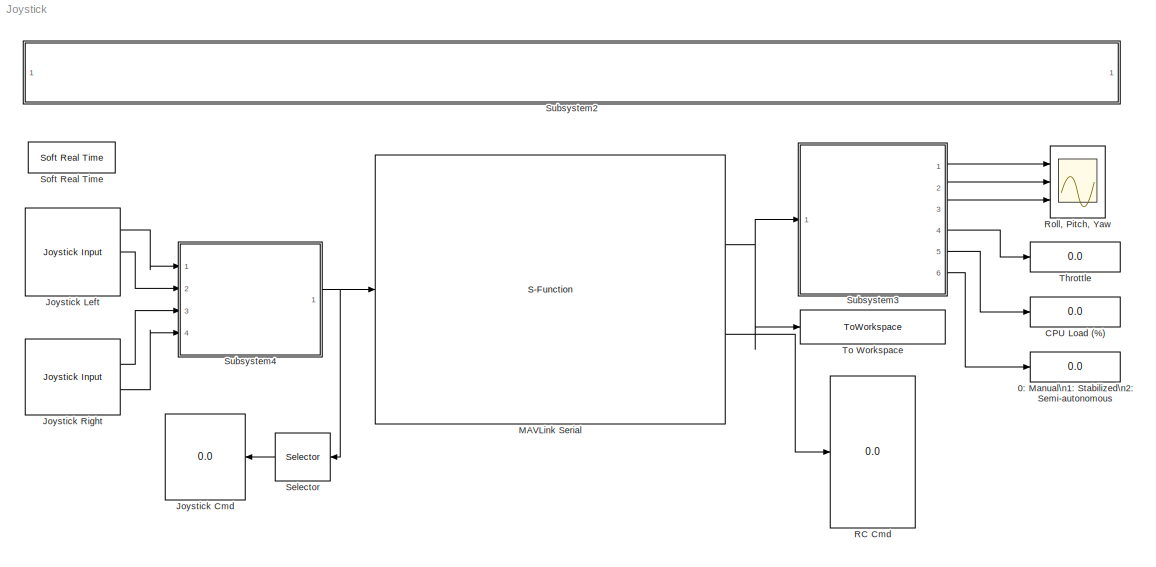
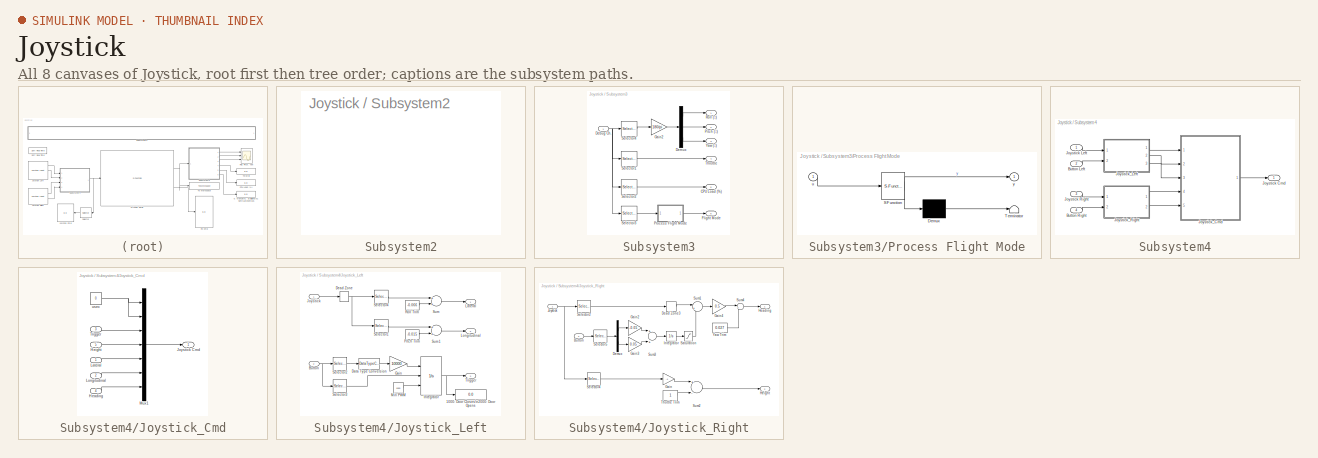
[diagram: thumbnail index - all 8 canvases of the model, root first then tree order]
MODEL Joystick
KIND model
CONFIG InitFcn = sample_time=0.01;
BLOCK [Display] 0: Manual\n1: Stabilized\n2: Semi-autonomous
  Decimation = 1
  Lockdown = off
  Ports = [1]
  SID = 1718
BLOCK [Display] CPU Load (%)
  Decimation = 1
  Lockdown = off
  Ports = [1]
  SID = 1713
BLOCK [Display] Joystick Cmd
  Decimation = 1
  Lockdown = off
  Ports = [1]
  SID = 1600
BLOCK [Reference] Joystick Left  REF=vrlib/Joystick Input
  Ports = [0, 3]
  SID = 1566
  SourceBlock = vrlib/Joystick Input
  SourceType = Joystick Input
  adjustports = on
  forcefeed = off
  joyid = 2
BLOCK [Reference] Joystick Right  REF=vrlib/Joystick Input
  Ports = [0, 2]
  SID = 1616
  SourceBlock = vrlib/Joystick Input
  SourceType = Joystick Input
  adjustports = on
  forcefeed = off
  joyid = 1
BLOCK [S-Function] MAVLink Serial
  EnableBusSupport = off
  FunctionName = MAVLink_Interface
  MaskCallbackString = ||||||||||||||||||
  MaskDisplay = % Block image\nimage(imread('10-inch Quad Heat Map.png'));\n\n%Label block\nfprintf('MAVLink Serial\\n%s\\n%dbps', COM_Port,  Baud_Rate)\n\n\n%Label input ports\n\nin = 1;\nif (SET_MODE == 1)\n    port_label('input', in, 'SET MODE');\n    in = in + 1;\nend\nif (DATA_STREAM == 1)\n    port_label('input', in, 'REQUEST DATA STREAM');\n    in = in + 1;\nend\nif (ATTITUDE_COMMAND == 1)\n    port_label(...<+1431ch>
  MaskEnableString = on,on,on,on,on,on,on,on,on,on,on,on,on,on,on,on,on,on,on
  MaskIconFrame = on
  MaskIconOpaque = off
  MaskIconRotate = none
  MaskIconUnits = autoscale
  MaskInitialization = MSG_ID_NUM_INPUT = [uint8(11) uint8(66) uint8(59) uint8(30) uint8(32) uint8(73) uint8(104) uint8(103) uint8(50)];\nMSG_ID_NAME_INPUT = [SET_MODE DATA_STREAM ATTITUDE_COMMAND ATTITUDE_IN GPS_RAW_IN VFR_HUD_IN VICON_XYZ_RPY VICON_VEL POSITION_DESIRED];\n\nMSG_ID_NUM_OUTPUT = [uint8(0) uint8(30) uint8(27) uint8(73) uint8(74) uint8(34) uint8(37) uint8(104)];\nMSG_ID_NAME_OUTPUT = [HEART_BEAT ATTITUDE_...<+248ch>
  MaskPortRotate = default
  MaskPromptString = COM Port|Baud Rate|HEART BEAT|ATTITUDE|RAW IMU|GLOBAL POSITION |VFR HUD|RC CHANNELS SCALED|SERVO OUTPUT RAW|VICON Output|SET MODE|REQUEST DATA STREAM|ATTITUDE COMMAND|ATTITUDE (HIL)|GPS RAW (HIL)|AIRSPEED (HIL)|VICON POSITION|VICON SPEED|Position Desired
  MaskStyleString = edit,edit,checkbox,checkbox,checkbox,checkbox,checkbox,checkbox,checkbox,checkbox,checkbox,checkbox,checkbox,checkbox,checkbox,checkbox,checkbox,checkbox,checkbox
  MaskTabNameString = Setting,Setting,Output Message,Output Message,Output Message,Output Message,Output Message,Output Message,Output Message,Output Message,Input Message,Input Message,Input Message,Input Message,Input Message,Input Message,Input Message,Input Message,Input Message
  MaskToolTipString = on,on,on,on,on,on,on,on,on,on,on,on,on,on,on,on,on,on,on
  MaskTunableValueString = on,on,on,on,on,on,on,on,on,on,on,on,on,on,on,on,on,on,on
  MaskValueString = 'COM8'|57600|off|on|off|off|off|on|off|off|off|off|off|off|off|off|on|off|off
  MaskVariables = COM_Port=@1;Baud_Rate=@2;HEART_BEAT=@3;ATTITUDE_OUT=@4;RAW_IMU=@5;POSITION_OUT=@6;VFR_HUD=@7;RC_SCALED=@8;SERVO_OUT_RAW=@9;VICON_XYZ_RPY_Output=@10;SET_MODE=@11;DATA_STREAM=@12;ATTITUDE_COMMAND=@13;ATTITUDE_IN=@14;GPS_RAW_IN=@15;VFR_HUD_IN=@16;VICON_XYZ_RPY=@17;VICON_VEL=@18;POSITION_DESIRED=@19;
  MaskVisibilityString = on,on,on,on,on,on,on,on,on,on,on,on,on,on,on,on,on,on,on
  Parameters = COM_Port,Baud_Rate,MSG_INPUT,MSG_OUTPUT
  Ports = [1, 2]
  SID = 195
BLOCK [Display] RC Cmd
  Decimation = 1
  Lockdown = off
  Ports = [1]
  SID = 1665
BLOCK [Scope] Roll, Pitch, Yaw
  DataFormat = StructureWithTime
  Floating = off
  LimitDataPoints = off
  NumInputPorts = 3
  Ports = [3]
  SID = 1675
  SampleInput = on
  SampleTime = 0
  SaveName = ScopeData1
  TickLabels = on
  TimeRange = 24
  YMax = 90~90~40
  YMin = -20~-10~-40
  ZoomMode = xonly
BLOCK [Selector] Selector
  IndexOptions = Index vector (dialog)
  Indices = [4:7]
  InputPortWidth = 7
  OutputSizes = 1
  Ports = [1, 1]
  SID = 1739
BLOCK [Reference] Soft Real Time  REF=utility/Soft Real Time  (lib defined in slx_8818c3a16fdf)
  Ports = []
  SID = 49
  SourceBlock = utility/Soft Real Time
  x = 0.8
BLOCK [SubSystem] Subsystem2
  FunctionWithSeparateData = off
  MaskDisplay = %Label block\nfprintf('NANYANG TECHNOLOGICAL UNIVERSITY')
  MaskHideContents = off
  MaskIconFrame = on
  MaskIconOpaque = on
  MaskIconRotate = none
  MaskIconUnits = autoscale
  MaskPortRotate = default
  MinAlgLoopOccurrences = off
  Opaque = off
  Ports = []
  PropExecContextOutsideSubsystem = off
  RTWSystemCode = Auto
  RequestExecContextInheritance = off
  SID = 1688
BLOCK [SubSystem] Subsystem3
  FunctionWithSeparateData = off
  MaskHideContents = off
  MinAlgLoopOccurrences = off
  Opaque = off
  Ports = [1, 6]
  PropExecContextOutsideSubsystem = off
  RTWSystemCode = Auto
  RequestExecContextInheritance = off
  SID = 1692
BLOCK [Outport] Subsystem3/CPU Load (%)
  IconDisplay = Port number
  Port = 5
  SID = 1710
BLOCK [Inport] Subsystem3/Debug Ch.
  IconDisplay = Port number
  SID = 1695
BLOCK [Demux] Subsystem3/Demux
  DisplayOption = bar
  Outputs = 3
  Ports = [1, 3]
  SID = 1691
BLOCK [Outport] Subsystem3/Flight Mode
  IconDisplay = Port number
  Port = 6
  SID = 1712
BLOCK [Gain] Subsystem3/Gain2
  Gain = 180/pi
  OutDataTypeStr = Inherit: Inherit via internal rule
  ParamDataTypeStr = Inherit: Inherit via internal rule
  SID = 1684
  SaturateOnIntegerOverflow = off
BLOCK [Outport] Subsystem3/Pitch (º)
  IconDisplay = Port number
  Port = 2
  SID = 1694
BLOCK [SubSystem] Subsystem3/Process Flight Mode
  ErrorFcn = Stateflow.Translate.translate
  FunctionWithSeparateData = off
  MaskDescription = Embedded MATLAB block
  MaskDisplay = bgColor = Simulink.Root.ColorString2Rgb(get_param(gcbh, 'BackgroundColor')); image(imread('private/eml_membrane_16.png','png','BackgroundColor',bgColor(1:3)),'center'); disp([10 10 'fcn']);
  MaskHideContents = off
  MaskIconFrame = on
  MaskIconOpaque = off
  MaskIconRotate = none
  MaskIconUnits = normalized
  MaskPortRotate = default
  MaskSelfModifiable = on
  MaskType = Stateflow
  MinAlgLoopOccurrences = off
  Opaque = off
  PermitHierarchicalResolution = ExplicitOnly
  Ports = [1, 1]
  PropExecContextOutsideSubsystem = off
  RTWSystemCode = Auto
  RequestExecContextInheritance = off
  SID = 1721
  TreatAsAtomicUnit = on
BLOCK [Demux] Subsystem3/Process Flight Mode/ Demux 
  Outputs = 1
  Ports = [1, 1]
  SID = 1721::15
BLOCK [S-Function] Subsystem3/Process Flight Mode/ SFunction 
  EnableBusSupport = on
  FunctionName = sf_sfun
  PortCounts = [1 2]
  Ports = [1, 2]
  SID = 1721::14
  Tag = Stateflow S-Function Joystick 2
BLOCK [Terminator] Subsystem3/Process Flight Mode/ Terminator 
  SID = 1721::17
BLOCK [Inport] Subsystem3/Process Flight Mode/u
  IconDisplay = Port number
  SID = 1721::1
BLOCK [Outport] Subsystem3/Process Flight Mode/y
  IconDisplay = Port number
  SID = 1721::5
BLOCK [Outport] Subsystem3/Roll (º)
  IconDisplay = Port number
  SID = 1693
BLOCK [Selector] Subsystem3/Selector1
  IndexOptions = Index vector (dialog)
  Indices = 4
  InputPortWidth = 6
  OutputSizes = 1
  Ports = [1, 1]
  SID = 1708
BLOCK [Selector] Subsystem3/Selector2
  IndexOptions = Index vector (dialog)
  Indices = 5
  InputPortWidth = 6
  OutputSizes = 1
  Ports = [1, 1]
  SID = 1709
BLOCK [Selector] Subsystem3/Selector3
  IndexOptions = Index vector (dialog)
  Indices = 6
  InputPortWidth = 6
  OutputSizes = 1
  Ports = [1, 1]
  SID = 1711
BLOCK [Selector] Subsystem3/Selector4
  IndexOptions = Index vector (dialog)
  Indices = [1 2 3]
  InputPortWidth = 6
  OutputSizes = 1
  Ports = [1, 1]
  SID = 1683
BLOCK [Outport] Subsystem3/Throttle
  IconDisplay = Port number
  Port = 4
  SID = 1707
BLOCK [Outport] Subsystem3/Yaw (º)
  IconDisplay = Port number
  Port = 3
  SID = 1696
BLOCK [SubSystem] Subsystem4
  FunctionWithSeparateData = off
  MaskHideContents = off
  MinAlgLoopOccurrences = off
  Opaque = off
  Ports = [4, 1]
  PropExecContextOutsideSubsystem = off
  RTWSystemCode = Auto
  RequestExecContextInheritance = off
  SID = 1740
BLOCK [Inport] Subsystem4/Button Left
  IconDisplay = Port number
  Port = 2
  SID = 1779
BLOCK [Inport] Subsystem4/Button Right
  IconDisplay = Port number
  Port = 4
  SID = 1745
BLOCK [Outport] Subsystem4/Joystick Cmd
  IconDisplay = Port number
  SID = 1742
BLOCK [Inport] Subsystem4/Joystick Left
  IconDisplay = Port number
  SID = 1741
BLOCK [Inport] Subsystem4/Joystick Right
  IconDisplay = Port number
  Port = 3
  SID = 1743
BLOCK [SubSystem] Subsystem4/Joystick_Cmd
  FunctionWithSeparateData = off
  MaskHideContents = off
  MinAlgLoopOccurrences = off
  Opaque = off
  Ports = [5, 1]
  PropExecContextOutsideSubsystem = off
  RTWSystemCode = Auto
  RequestExecContextInheritance = off
  SID = 543
BLOCK [Inport] Subsystem4/Joystick_Cmd/Heading
  IconDisplay = Port number
  Port = 4
  SID = 1651
BLOCK [Inport] Subsystem4/Joystick_Cmd/Height
  IconDisplay = Port number
  Port = 5
  SID = 1652
BLOCK [Outport] Subsystem4/Joystick_Cmd/Joystick Cmd
  IconDisplay = Port number
  SID = 545
BLOCK [Inport] Subsystem4/Joystick_Cmd/Lateral
  IconDisplay = Port number
  SID = 544
BLOCK [Inport] Subsystem4/Joystick_Cmd/Longitudinal
  IconDisplay = Port number
  Port = 2
  SID = 546
BLOCK [Mux] Subsystem4/Joystick_Cmd/Mux1
  DisplayOption = bar
  Inputs = 7
  Ports = [7, 1]
  SID = 495
BLOCK [Inport] Subsystem4/Joystick_Cmd/Trigger
  IconDisplay = Port number
  Port = 3
  SID = 1792
BLOCK [Constant] Subsystem4/Joystick_Cmd/usec
  SID = 496
  SampleTime = sample_time
  Value = 0
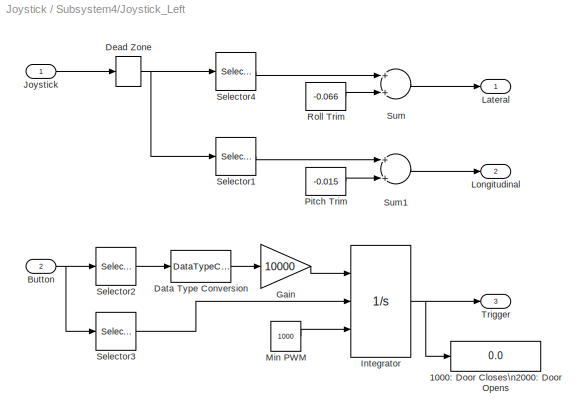
BLOCK [SubSystem] Subsystem4/Joystick_Left
  FunctionWithSeparateData = off
  MaskHideContents = off
  MinAlgLoopOccurrences = off
  Opaque = off
  Ports = [2, 3]
  PropExecContextOutsideSubsystem = off
  RTWSystemCode = Auto
  RequestExecContextInheritance = off
  SID = 1595
BLOCK [Display] Subsystem4/Joystick_Left/1000: Door Closes\n2000: Door Opens
  Decimation = 1
  Lockdown = off
  Ports = [1]
  SID = 1781
BLOCK [Inport] Subsystem4/Joystick_Left/Button
  IconDisplay = Port number
  Port = 2
  SID = 1780
BLOCK [DataTypeConversion] Subsystem4/Joystick_Left/Data Type Conversion
  OutDataTypeStr = double
  RndMeth = Floor
  SID = 1790
  SaturateOnIntegerOverflow = off
BLOCK [DeadZone] Subsystem4/Joystick_Left/Dead Zone
  LowerValue = -0.1
  SID = 1571
  UpperValue = 0.1
BLOCK [Gain] Subsystem4/Joystick_Left/Gain
  Gain = 10000
  OutDataTypeStr = Inherit: Inherit via internal rule
  ParamDataTypeStr = Inherit: Inherit via internal rule
  SID = 1787
  SaturateOnIntegerOverflow = off
BLOCK [Integrator] Subsystem4/Joystick_Left/Integrator
  ExternalReset = either
  InitialConditionSource = external
  LimitOutput = on
  LowerSaturationLimit = 1000
  Ports = [3, 1]
  SID = 1789
  UpperSaturationLimit = 1800
BLOCK [Inport] Subsystem4/Joystick_Left/Joystick
  IconDisplay = Port number
  SID = 1597
BLOCK [Outport] Subsystem4/Joystick_Left/Lateral
  IconDisplay = Port number
  SID = 1598
BLOCK [Outport] Subsystem4/Joystick_Left/Longitudinal
  IconDisplay = Port number
  Port = 2
  SID = 1646
BLOCK [Constant] Subsystem4/Joystick_Left/Min PWM
  SID = 1783
  Value = 1000
BLOCK [Constant] Subsystem4/Joystick_Left/Pitch Trim
  SID = 1659
  Value = -0.015
BLOCK [Constant] Subsystem4/Joystick_Left/Roll Trim
  SID = 1658
  Value = -0.066
BLOCK [Selector] Subsystem4/Joystick_Left/Selector1
  IndexOptions = Index vector (dialog)
  Indices = 2
  InputPortWidth = 4
  OutputSizes = 1
  Ports = [1, 1]
  SID = 1681
BLOCK [Selector] Subsystem4/Joystick_Left/Selector2
  IndexOptions = Index vector (dialog)
  Indices = 1
  InputPortWidth = 12
  OutputSizes = 1
  Ports = [1, 1]
  SID = 1782
BLOCK [Selector] Subsystem4/Joystick_Left/Selector3
  IndexOptions = Index vector (dialog)
  Indices = 4
  InputPortWidth = 12
  OutputSizes = 1
  Ports = [1, 1]
  SID = 1794
BLOCK [Selector] Subsystem4/Joystick_Left/Selector4
  IndexOptions = Index vector (dialog)
  Indices = 1
  InputPortWidth = 4
  OutputSizes = 1
  Ports = [1, 1]
  SID = 1680
BLOCK [Sum] Subsystem4/Joystick_Left/Sum
  InputSameDT = off
  OutDataTypeStr = Inherit: Inherit via internal rule
  Ports = [2, 1]
  SID = 1657
  SaturateOnIntegerOverflow = off
BLOCK [Sum] Subsystem4/Joystick_Left/Sum1
  InputSameDT = off
  OutDataTypeStr = Inherit: Inherit via internal rule
  Ports = [2, 1]
  SID = 1660
  SaturateOnIntegerOverflow = off
BLOCK [Outport] Subsystem4/Joystick_Left/Trigger
  IconDisplay = Port number
  Port = 3
  SID = 1791
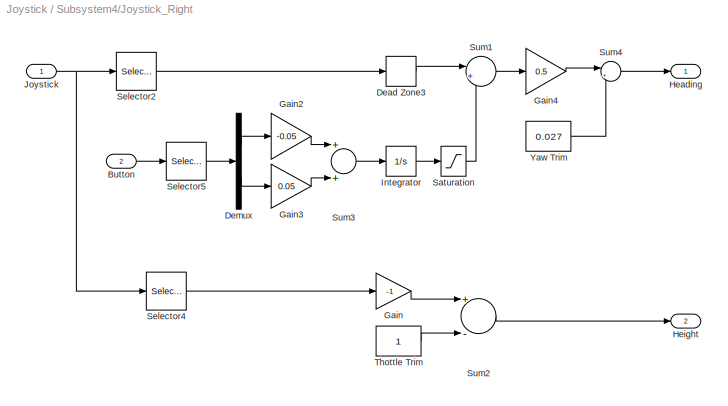
BLOCK [SubSystem] Subsystem4/Joystick_Right
  FunctionWithSeparateData = off
  MaskHideContents = off
  MinAlgLoopOccurrences = off
  Opaque = off
  Ports = [2, 2]
  PropExecContextOutsideSubsystem = off
  RTWSystemCode = Auto
  RequestExecContextInheritance = off
  SID = 1634
BLOCK [Inport] Subsystem4/Joystick_Right/Button
  IconDisplay = Port number
  Port = 2
  SID = 1744
BLOCK [DeadZone] Subsystem4/Joystick_Right/Dead Zone3
  LowerValue = -0.2
  SID = 1729
  UpperValue = 0.2
BLOCK [Demux] Subsystem4/Joystick_Right/Demux
  DisplayOption = bar
  Outputs = 2
  Ports = [1, 2]
  SID = 1765
BLOCK [Gain] Subsystem4/Joystick_Right/Gain
  Gain = -1
  OutDataTypeStr = Inherit: Inherit via internal rule
  ParamDataTypeStr = Inherit: Inherit via internal rule
  SID = 1626
  SaturateOnIntegerOverflow = off
BLOCK [Gain] Subsystem4/Joystick_Right/Gain2
  Gain = -0.05
  OutDataTypeStr = Inherit: Inherit via internal rule
  ParamDataTypeStr = Inherit: Inherit via internal rule
  SID = 1767
  SaturateOnIntegerOverflow = off
BLOCK [Gain] Subsystem4/Joystick_Right/Gain3
  Gain = 0.05
  OutDataTypeStr = Inherit: Inherit via internal rule
  ParamDataTypeStr = Inherit: Inherit via internal rule
  SID = 1768
  SaturateOnIntegerOverflow = off
BLOCK [Gain] Subsystem4/Joystick_Right/Gain4
  Gain = 0.5
  OutDataTypeStr = Inherit: Inherit via internal rule
  ParamDataTypeStr = Inherit: Inherit via internal rule
  SID = 1777
  SaturateOnIntegerOverflow = off
BLOCK [Outport] Subsystem4/Joystick_Right/Heading
  IconDisplay = Port number
  SID = 1637
BLOCK [Outport] Subsystem4/Joystick_Right/Height
  IconDisplay = Port number
  Port = 2
  SID = 1635
BLOCK [Integrator] Subsystem4/Joystick_Right/Integrator
  Ports = [1, 1]
  SID = 1771
BLOCK [Inport] Subsystem4/Joystick_Right/Joystick
  IconDisplay = Port number
  SID = 1636
BLOCK [Saturate] Subsystem4/Joystick_Right/Saturation
  InputPortMap = u0
  LowerLimit = -0.1
  Ports = [1, 1]
  SID = 1772
  UpperLimit = 0.1
BLOCK [Selector] Subsystem4/Joystick_Right/Selector2
  IndexOptions = Index vector (dialog)
  Indices = [1]
  InputPortWidth = 3
  OutputSizes = 1
  Ports = [1, 1]
  SID = 1632
BLOCK [Selector] Subsystem4/Joystick_Right/Selector4
  IndexOptions = Index vector (dialog)
  Indices = 2
  InputPortWidth = 3
  OutputSizes = 1
  Ports = [1, 1]
  SID = 1640
BLOCK [Selector] Subsystem4/Joystick_Right/Selector5
  IndexOptions = Index vector (dialog)
  Indices = [4 5]
  InputPortWidth = 11
  OutputSizes = 1
  Ports = [1, 1]
  SID = 1756
BLOCK [Sum] Subsystem4/Joystick_Right/Sum1
  IconShape = round
  InputSameDT = off
  Inputs = |++
  OutDataTypeStr = Inherit: Inherit via internal rule
  Ports = [2, 1]
  SID = 1662
  SaturateOnIntegerOverflow = off
BLOCK [Sum] Subsystem4/Joystick_Right/Sum2
  InputSameDT = off
  Inputs = +-
  OutDataTypeStr = Inherit: Inherit via internal rule
  Ports = [2, 1]
  SID = 1737
  SaturateOnIntegerOverflow = off
BLOCK [Sum] Subsystem4/Joystick_Right/Sum3
  InputSameDT = off
  OutDataTypeStr = double
  Ports = [2, 1]
  SID = 1769
  SaturateOnIntegerOverflow = off
BLOCK [Sum] Subsystem4/Joystick_Right/Sum4
  IconShape = round
  InputSameDT = off
  Inputs = |++
  OutDataTypeStr = Inherit: Inherit via internal rule
  Ports = [2, 1]
  SID = 1773
  SaturateOnIntegerOverflow = off
BLOCK [Constant] Subsystem4/Joystick_Right/Thottle Trim
  SID = 1738
BLOCK [Constant] Subsystem4/Joystick_Right/Yaw Trim
  SID = 1661
  Value = 0.027
BLOCK [Display] Throttle
  Decimation = 1
  Lockdown = off
  Ports = [1]
  SID = 1706
BLOCK [ToWorkspace] To Workspace
  MaxDataPoints = inf
  Ports = [1]
  SID = 1668
  SampleTime = -1
  SaveFormat = Structure With Time
  VariableName = Data_Logging
LINE Joystick Left:1 -> Subsystem4:1
LINE Joystick Left:2 -> Subsystem4:2
LINE Joystick Right:1 -> Subsystem4:3
LINE Joystick Right:2 -> Subsystem4:4
NET MAVLink Serial:1 -> Subsystem3:1, To Workspace:1
LINE MAVLink Serial:2 -> RC Cmd:1
LINE Selector:1 -> Joystick Cmd:1
NET Subsystem3/Debug Ch.:1 -> Subsystem3/Selector1:1, Subsystem3/Selector2:1, Subsystem3/Selector3:1, Subsystem3/Selector4:1
LINE Subsystem3/Demux:1 -> Subsystem3/Roll (º):1
LINE Subsystem3/Demux:2 -> Subsystem3/Pitch (º):1
LINE Subsystem3/Demux:3 -> Subsystem3/Yaw (º):1
LINE Subsystem3/Gain2:1 -> Subsystem3/Demux:1
LINE Subsystem3/Process Flight Mode/ Demux :1 -> Subsystem3/Process Flight Mode/ Terminator :1
LINE Subsystem3/Process Flight Mode/ SFunction :1 -> Subsystem3/Process Flight Mode/ Demux :1
LINE Subsystem3/Process Flight Mode/ SFunction :2 -> Subsystem3/Process Flight Mode/y:1
LINE Subsystem3/Process Flight Mode/u:1 -> Subsystem3/Process Flight Mode/ SFunction :1
LINE Subsystem3/Process Flight Mode:1 -> Subsystem3/Flight Mode:1
LINE Subsystem3/Selector1:1 -> Subsystem3/Throttle:1
LINE Subsystem3/Selector2:1 -> Subsystem3/CPU Load (%):1
LINE Subsystem3/Selector3:1 -> Subsystem3/Process Flight Mode:1
LINE Subsystem3/Selector4:1 -> Subsystem3/Gain2:1
LINE Subsystem3:1 -> Roll, Pitch, Yaw:1
LINE Subsystem3:2 -> Roll, Pitch, Yaw:2
LINE Subsystem3:3 -> Roll, Pitch, Yaw:3
LINE Subsystem3:4 -> Throttle:1
LINE Subsystem3:5 -> CPU Load (%):1
LINE Subsystem3:6 -> 0: Manual\n1: Stabilized\n2: Semi-autonomous:1
LINE Subsystem4/Button Left:1 -> Subsystem4/Joystick_Left:2
LINE Subsystem4/Button Right:1 -> Subsystem4/Joystick_Right:2
LINE Subsystem4/Joystick Left:1 -> Subsystem4/Joystick_Left:1
LINE Subsystem4/Joystick Right:1 -> Subsystem4/Joystick_Right:1
LINE Subsystem4/Joystick_Cmd/Heading:1 -> Subsystem4/Joystick_Cmd/Mux1:7
LINE Subsystem4/Joystick_Cmd/Height:1 -> Subsystem4/Joystick_Cmd/Mux1:4
LINE Subsystem4/Joystick_Cmd/Lateral:1 -> Subsystem4/Joystick_Cmd/Mux1:5
LINE Subsystem4/Joystick_Cmd/Longitudinal:1 -> Subsystem4/Joystick_Cmd/Mux1:6
LINE Subsystem4/Joystick_Cmd/Mux1:1 -> Subsystem4/Joystick_Cmd/Joystick Cmd:1
LINE Subsystem4/Joystick_Cmd/Trigger:1 -> Subsystem4/Joystick_Cmd/Mux1:3
NET Subsystem4/Joystick_Cmd/usec:1 -> Subsystem4/Joystick_Cmd/Mux1:1, Subsystem4/Joystick_Cmd/Mux1:2
LINE Subsystem4/Joystick_Cmd:1 -> Subsystem4/Joystick Cmd:1
NET Subsystem4/Joystick_Left/Button:1 -> Subsystem4/Joystick_Left/Selector2:1, Subsystem4/Joystick_Left/Selector3:1
LINE Subsystem4/Joystick_Left/Data Type Conversion:1 -> Subsystem4/Joystick_Left/Gain:1
NET Subsystem4/Joystick_Left/Dead Zone:1 -> Subsystem4/Joystick_Left/Selector1:1, Subsystem4/Joystick_Left/Selector4:1
LINE Subsystem4/Joystick_Left/Gain:1 -> Subsystem4/Joystick_Left/Integrator:1
NET Subsystem4/Joystick_Left/Integrator:1 -> Subsystem4/Joystick_Left/1000: Door Closes\n2000: Door Opens:1, Subsystem4/Joystick_Left/Trigger:1
LINE Subsystem4/Joystick_Left/Joystick:1 -> Subsystem4/Joystick_Left/Dead Zone:1
LINE Subsystem4/Joystick_Left/Min PWM:1 -> Subsystem4/Joystick_Left/Integrator:3
LINE Subsystem4/Joystick_Left/Pitch Trim:1 -> Subsystem4/Joystick_Left/Sum1:2
LINE Subsystem4/Joystick_Left/Roll Trim:1 -> Subsystem4/Joystick_Left/Sum:2
LINE Subsystem4/Joystick_Left/Selector1:1 -> Subsystem4/Joystick_Left/Sum1:1
LINE Subsystem4/Joystick_Left/Selector2:1 -> Subsystem4/Joystick_Left/Data Type Conversion:1
LINE Subsystem4/Joystick_Left/Selector3:1 -> Subsystem4/Joystick_Left/Integrator:2
LINE Subsystem4/Joystick_Left/Selector4:1 -> Subsystem4/Joystick_Left/Sum:1
LINE Subsystem4/Joystick_Left/Sum1:1 -> Subsystem4/Joystick_Left/Longitudinal:1
LINE Subsystem4/Joystick_Left/Sum:1 -> Subsystem4/Joystick_Left/Lateral:1
LINE Subsystem4/Joystick_Left:1 -> Subsystem4/Joystick_Cmd:1
LINE Subsystem4/Joystick_Left:2 -> Subsystem4/Joystick_Cmd:2
LINE Subsystem4/Joystick_Left:3 -> Subsystem4/Joystick_Cmd:3
LINE Subsystem4/Joystick_Right/Button:1 -> Subsystem4/Joystick_Right/Selector5:1
LINE Subsystem4/Joystick_Right/Dead Zone3:1 -> Subsystem4/Joystick_Right/Sum1:1
LINE Subsystem4/Joystick_Right/Demux:1 -> Subsystem4/Joystick_Right/Gain2:1
LINE Subsystem4/Joystick_Right/Demux:2 -> Subsystem4/Joystick_Right/Gain3:1
LINE Subsystem4/Joystick_Right/Gain2:1 -> Subsystem4/Joystick_Right/Sum3:1
LINE Subsystem4/Joystick_Right/Gain3:1 -> Subsystem4/Joystick_Right/Sum3:2
LINE Subsystem4/Joystick_Right/Gain4:1 -> Subsystem4/Joystick_Right/Sum4:1
LINE Subsystem4/Joystick_Right/Gain:1 -> Subsystem4/Joystick_Right/Sum2:1
LINE Subsystem4/Joystick_Right/Integrator:1 -> Subsystem4/Joystick_Right/Saturation:1
NET Subsystem4/Joystick_Right/Joystick:1 -> Subsystem4/Joystick_Right/Selector2:1, Subsystem4/Joystick_Right/Selector4:1
LINE Subsystem4/Joystick_Right/Saturation:1 -> Subsystem4/Joystick_Right/Sum1:2
LINE Subsystem4/Joystick_Right/Selector2:1 -> Subsystem4/Joystick_Right/Dead Zone3:1
LINE Subsystem4/Joystick_Right/Selector4:1 -> Subsystem4/Joystick_Right/Gain:1
LINE Subsystem4/Joystick_Right/Selector5:1 -> Subsystem4/Joystick_Right/Demux:1
LINE Subsystem4/Joystick_Right/Sum1:1 -> Subsystem4/Joystick_Right/Gain4:1
LINE Subsystem4/Joystick_Right/Sum2:1 -> Subsystem4/Joystick_Right/Height:1
LINE Subsystem4/Joystick_Right/Sum3:1 -> Subsystem4/Joystick_Right/Integrator:1
LINE Subsystem4/Joystick_Right/Sum4:1 -> Subsystem4/Joystick_Right/Heading:1
LINE Subsystem4/Joystick_Right/Thottle Trim:1 -> Subsystem4/Joystick_Right/Sum2:2
LINE Subsystem4/Joystick_Right/Yaw Trim:1 -> Subsystem4/Joystick_Right/Sum4:2
LINE Subsystem4/Joystick_Right:1 -> Subsystem4/Joystick_Cmd:4
LINE Subsystem4/Joystick_Right:2 -> Subsystem4/Joystick_Cmd:5
NET Subsystem4:1 -> MAVLink Serial:1, Selector:1
note: NET lines group one-source signal fan-out (src -> all destinations, sorted); 1:1 wires keep LINE
CHART Subsystem3/Process Flight Mode states=1 transitions=1
  STATE_LABEL 'eML_blk_kernel()'
